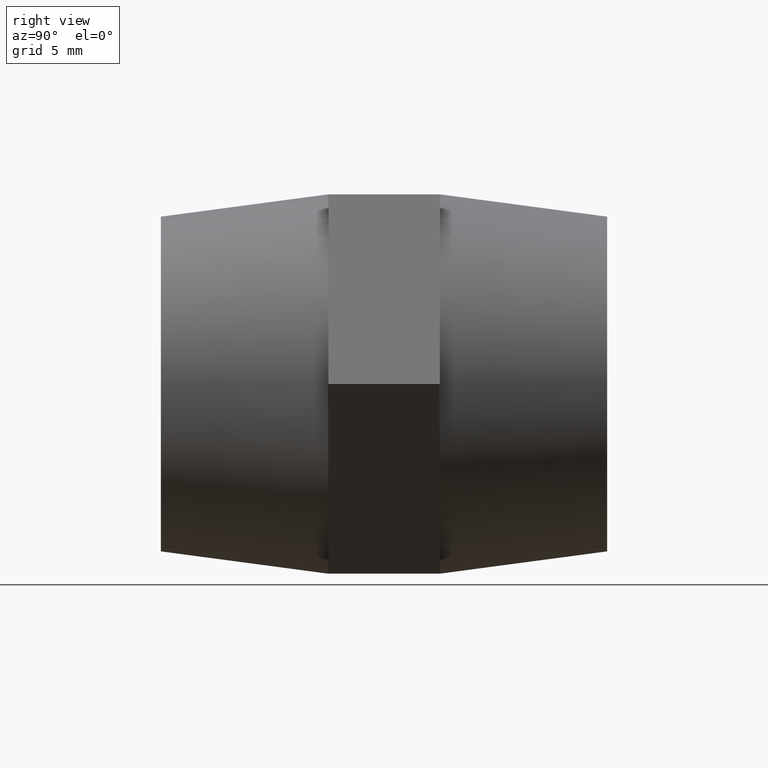
[diagram: clean part render]
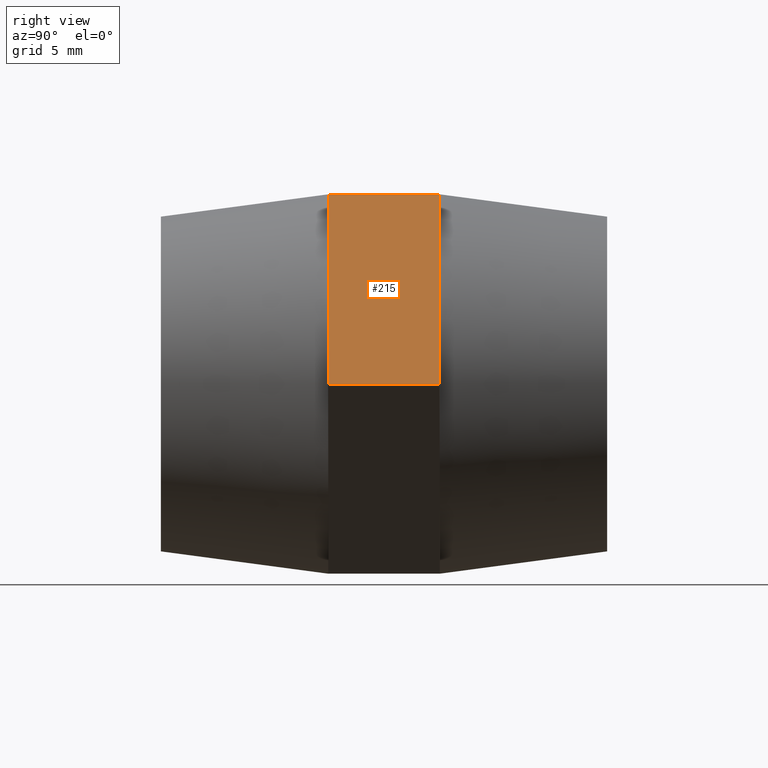
[diagram: same view with one face highlighted and labeled with its STEP entity id]
A machine part, right view. The second image highlights one B-rep face of the part: STEP entity #215.
In plain terms, the highlighted planar face has unit normal (-0.866, 0, -0.5).
Its self-contained STEP definition (entity closure, byte-faithful):
#71 = DIRECTION ( 'NONE',  ( 0.4999999999999998900, 0.0000000000000000000, -0.8660254037844387100 ) ) ;
#178 = AXIS2_PLACEMENT_3D ( 'NONE', #3000, #3295, #1533 ) ;
#215 = ADVANCED_FACE ( 'NONE', ( #1457 ), #323, .F. ) ;
#283 = LINE ( 'NONE', #1269, #2883 ) ;
#289 = EDGE_CURVE ( 'NONE', #3831, #898, #3801, .T. ) ;
#323 = PLANE ( 'NONE',  #178 ) ;
#351 = ORIENTED_EDGE ( 'NONE', *, *, #289, .T. ) ;
#764 = ORIENTED_EDGE ( 'NONE', *, *, #2539, .F. ) ;
#898 = VERTEX_POINT ( 'NONE', #2241 ) ;
#1013 = VERTEX_POINT ( 'NONE', #1233 ) ;
#1085 = CARTESIAN_POINT ( 'NONE',  ( 4.907477288111820700, 2.500000000000000000, 8.500000000000000000 ) ) ;
#1087 = EDGE_LOOP ( 'NONE', ( #1724, #3802, #764, #3665, #1732, #351 ) ) ;
#1134 = LINE ( 'NONE', #1899, #2798 ) ;
#1156 = CARTESIAN_POINT ( 'NONE',  ( 9.814954576223639600, 2.500000000000000000, -1.574757103346314900E-015 ) ) ;
#1197 = EDGE_CURVE ( 'NONE', #3558, #1939, #3191, .T. ) ;
#1233 = CARTESIAN_POINT ( 'NONE',  ( 9.814954576223639600, -2.500000000000000000, -1.574757103346314900E-015 ) ) ;
#1240 = CARTESIAN_POINT ( 'NONE',  ( 9.814954576223639600, 2.500000000000000000, -1.574757103346314900E-015 ) ) ;
#1269 = CARTESIAN_POINT ( 'NONE',  ( 4.907477288111820700, -2.500000000000000000, 8.500000000000000000 ) ) ;
#1329 = CARTESIAN_POINT ( 'NONE',  ( 4.907477288111820700, 2.500000000000000000, 8.500000000000000000 ) ) ;
#1457 = FACE_OUTER_BOUND ( 'NONE', #1087, .T. ) ;
#1533 = DIRECTION ( 'NONE',  ( -0.4999999999999998900, 0.0000000000000000000, 0.8660254037844387100 ) ) ;
#1545 = DIRECTION ( 'NONE',  ( 0.4999999999999998900, 0.0000000000000000000, -0.8660254037844387100 ) ) ;
#1626 = VERTEX_POINT ( 'NONE', #3170 ) ;
#1724 = ORIENTED_EDGE ( 'NONE', *, *, #3745, .T. ) ;
#1732 = ORIENTED_EDGE ( 'NONE', *, *, #2807, .F. ) ;
#1825 = VECTOR ( 'NONE', #71, 1000.000000000000000 ) ;
#1890 = CARTESIAN_POINT ( 'NONE',  ( 4.907477288111820700, -2.500000000000000000, 8.500000000000000000 ) ) ;
#1899 = CARTESIAN_POINT ( 'NONE',  ( 4.907477288111820700, 2.500000000000000000, 8.500000000000000000 ) ) ;
#1939 = VERTEX_POINT ( 'NONE', #1240 ) ;
#1962 = CARTESIAN_POINT ( 'NONE',  ( 4.907477288111820700, 2.500000000000000000, 8.500000000000000000 ) ) ;
#2241 = CARTESIAN_POINT ( 'NONE',  ( 4.907477288111820700, -2.500000000000000000, 8.500000000000000000 ) ) ;
#2245 = DIRECTION ( 'NONE',  ( 0.4999999999999998900, 0.0000000000000000000, -0.8660254037844387100 ) ) ;
#2460 = VECTOR ( 'NONE', #3559, 1000.000000000000000 ) ;
#2480 = CARTESIAN_POINT ( 'NONE',  ( 7.361215932167730200, 2.500000000000000000, 4.250000000000000000 ) ) ;
#2539 = EDGE_CURVE ( 'NONE', #1939, #1013, #3114, .T. ) ;
#2699 = EDGE_CURVE ( 'NONE', #1626, #1013, #283, .T. ) ;
#2798 = VECTOR ( 'NONE', #2245, 1000.000000000000000 ) ;
#2807 = EDGE_CURVE ( 'NONE', #3831, #3558, #1134, .T. ) ;
#2883 = VECTOR ( 'NONE', #1545, 1000.000000000000000 ) ;
#3000 = CARTESIAN_POINT ( 'NONE',  ( 4.907477288111820700, 2.500000000000000000, 8.500000000000000000 ) ) ;
#3051 = LINE ( 'NONE', #1890, #1825 ) ;
#3056 = VECTOR ( 'NONE', #3735, 1000.000000000000000 ) ;
#3097 = VECTOR ( 'NONE', #3766, 1000.000000000000000 ) ;
#3114 = LINE ( 'NONE', #1156, #2460 ) ;
#3170 = CARTESIAN_POINT ( 'NONE',  ( 7.361215932167730200, -2.500000000000000000, 4.250000000000000000 ) ) ;
#3191 = LINE ( 'NONE', #1085, #3097 ) ;
#3295 = DIRECTION ( 'NONE',  ( -0.8660254037844387100, 0.0000000000000000000, -0.4999999999999998900 ) ) ;
#3558 = VERTEX_POINT ( 'NONE', #2480 ) ;
#3559 = DIRECTION ( 'NONE',  ( 0.0000000000000000000, -1.000000000000000000, 0.0000000000000000000 ) ) ;
#3665 = ORIENTED_EDGE ( 'NONE', *, *, #1197, .F. ) ;
#3735 = DIRECTION ( 'NONE',  ( 0.0000000000000000000, -1.000000000000000000, 0.0000000000000000000 ) ) ;
#3745 = EDGE_CURVE ( 'NONE', #898, #1626, #3051, .T. ) ;
#3766 = DIRECTION ( 'NONE',  ( 0.4999999999999998900, 0.0000000000000000000, -0.8660254037844387100 ) ) ;
#3801 = LINE ( 'NONE', #1329, #3056 ) ;
#3802 = ORIENTED_EDGE ( 'NONE', *, *, #2699, .T. ) ;
#3831 = VERTEX_POINT ( 'NONE', #1962 ) ;